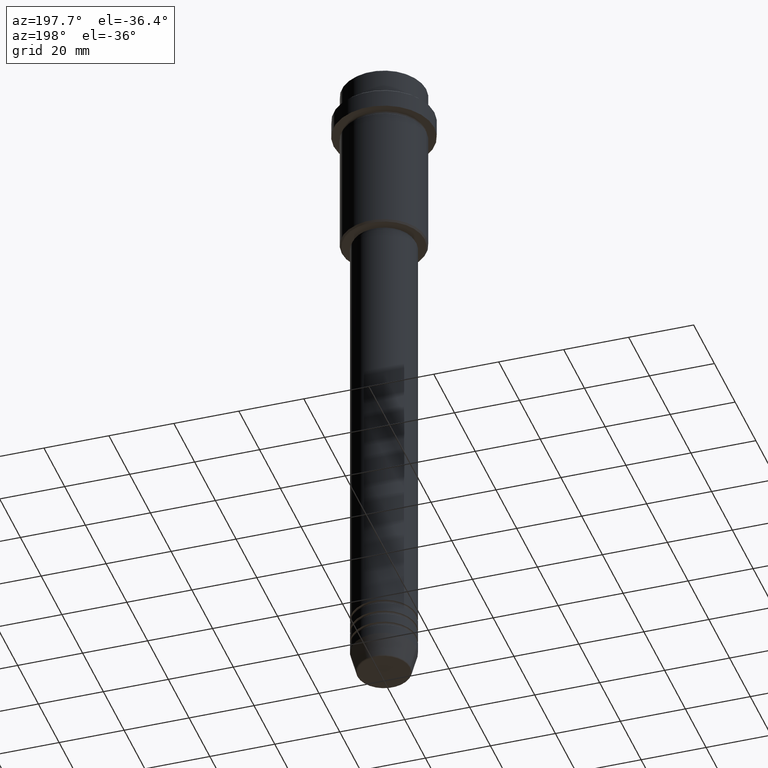
[diagram: clean part render]
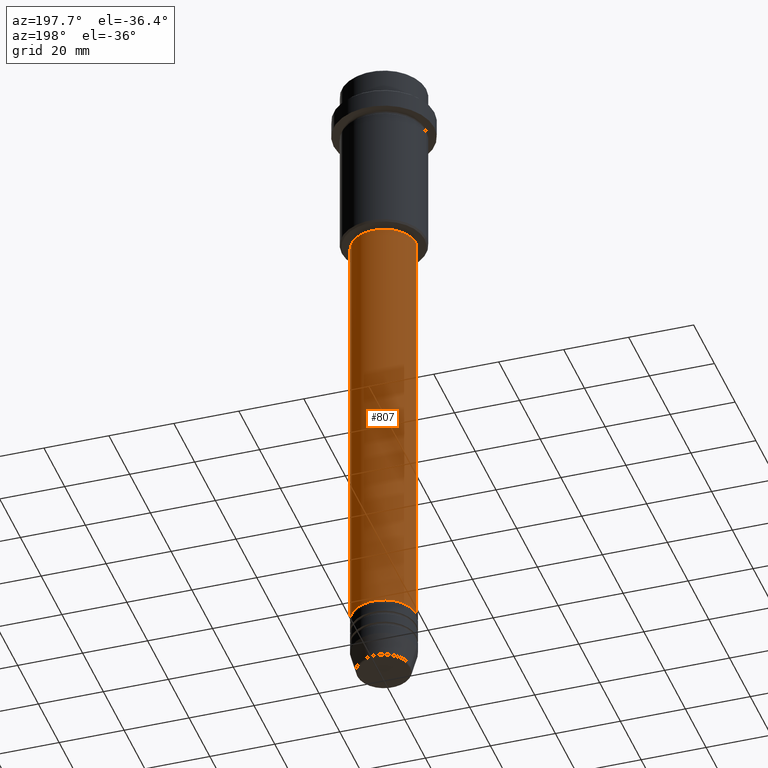
[diagram: same view with one face highlighted and labeled with its STEP entity id]
A machine part, auxiliary view. The second image highlights one B-rep face of the part: STEP entity #807.
In plain terms, the highlighted cylindrical surface (edge-blend (fillet) strip) has radius 10 mm, axis along (-0, -0, 1).
Its self-contained STEP definition (entity closure, byte-faithful):
#66 = CARTESIAN_POINT ( 'NONE',  ( 0.000000000000000000, 0.000000000000000000, -190.9999999999999147 ) ) ;
#93 = ORIENTED_EDGE ( 'NONE', *, *, #565, .T. ) ;
#100 = CARTESIAN_POINT ( 'NONE',  ( -10.00000000000000000, 1.224646799147353256E-15, -190.9999999999999147 ) ) ;
#114 = DIRECTION ( 'NONE',  ( -0.000000000000000000, -0.000000000000000000, 1.000000000000000000 ) ) ;
#155 = DIRECTION ( 'NONE',  ( -0.000000000000000000, -0.000000000000000000, 1.000000000000000000 ) ) ;
#209 = EDGE_CURVE ( 'NONE', #916, #472, #740, .T. ) ;
#223 = DIRECTION ( 'NONE',  ( -0.000000000000000000, -0.000000000000000000, 1.000000000000000000 ) ) ;
#252 = ORIENTED_EDGE ( 'NONE', *, *, #297, .F. ) ;
#286 = AXIS2_PLACEMENT_3D ( 'NONE', #413, #863, #1146 ) ;
#297 = EDGE_CURVE ( 'NONE', #373, #1026, #675, .T. ) ;
#346 = AXIS2_PLACEMENT_3D ( 'NONE', #66, #1374, #1271 ) ;
#373 = VERTEX_POINT ( 'NONE', #1008 ) ;
#413 = CARTESIAN_POINT ( 'NONE',  ( 0.000000000000000000, 0.000000000000000000, -56.00000000000002842 ) ) ;
#464 = CYLINDRICAL_SURFACE ( 'NONE', #862, 10.00000000000000178 ) ;
#467 = VECTOR ( 'NONE', #223, 1000.000000000000000 ) ;
#472 = VERTEX_POINT ( 'NONE', #100 ) ;
#565 = EDGE_CURVE ( 'NONE', #472, #1026, #919, .T. ) ;
#586 = EDGE_LOOP ( 'NONE', ( #1051, #93, #252, #923 ) ) ;
#668 = LINE ( 'NONE', #872, #467 ) ;
#675 = CIRCLE ( 'NONE', #286, 10.00000000000000178 ) ;
#680 = DIRECTION ( 'NONE',  ( 1.000000000000000000, 0.000000000000000000, 0.000000000000000000 ) ) ;
#699 = CARTESIAN_POINT ( 'NONE',  ( -10.00000000000000178, 1.224646799147353454E-15, -56.00000000000002842 ) ) ;
#718 = CARTESIAN_POINT ( 'NONE',  ( 10.00000000000000000, 0.000000000000000000, -190.9999999999999147 ) ) ;
#740 = CIRCLE ( 'NONE', #346, 10.00000000000000000 ) ;
#807 = ADVANCED_FACE ( 'NONE', ( #893 ), #464, .T. ) ;
#862 = AXIS2_PLACEMENT_3D ( 'NONE', #1308, #114, #680 ) ;
#863 = DIRECTION ( 'NONE',  ( -0.000000000000000000, -0.000000000000000000, 1.000000000000000000 ) ) ;
#872 = CARTESIAN_POINT ( 'NONE',  ( 10.00000000000000178, 0.000000000000000000, 0.000000000000000000 ) ) ;
#893 = FACE_OUTER_BOUND ( 'NONE', #586, .T. ) ;
#916 = VERTEX_POINT ( 'NONE', #718 ) ;
#919 = LINE ( 'NONE', #1347, #1019 ) ;
#923 = ORIENTED_EDGE ( 'NONE', *, *, #1322, .F. ) ;
#1008 = CARTESIAN_POINT ( 'NONE',  ( 10.00000000000000178, 0.000000000000000000, -56.00000000000002842 ) ) ;
#1019 = VECTOR ( 'NONE', #155, 1000.000000000000000 ) ;
#1026 = VERTEX_POINT ( 'NONE', #699 ) ;
#1051 = ORIENTED_EDGE ( 'NONE', *, *, #209, .T. ) ;
#1146 = DIRECTION ( 'NONE',  ( 1.000000000000000000, 0.000000000000000000, 0.000000000000000000 ) ) ;
#1271 = DIRECTION ( 'NONE',  ( 1.000000000000000000, 0.000000000000000000, 0.000000000000000000 ) ) ;
#1308 = CARTESIAN_POINT ( 'NONE',  ( 0.000000000000000000, 0.000000000000000000, 0.000000000000000000 ) ) ;
#1322 = EDGE_CURVE ( 'NONE', #916, #373, #668, .T. ) ;
#1347 = CARTESIAN_POINT ( 'NONE',  ( -10.00000000000000178, 1.224646799147353454E-15, 0.000000000000000000 ) ) ;
#1374 = DIRECTION ( 'NONE',  ( -0.000000000000000000, -0.000000000000000000, 1.000000000000000000 ) ) ;